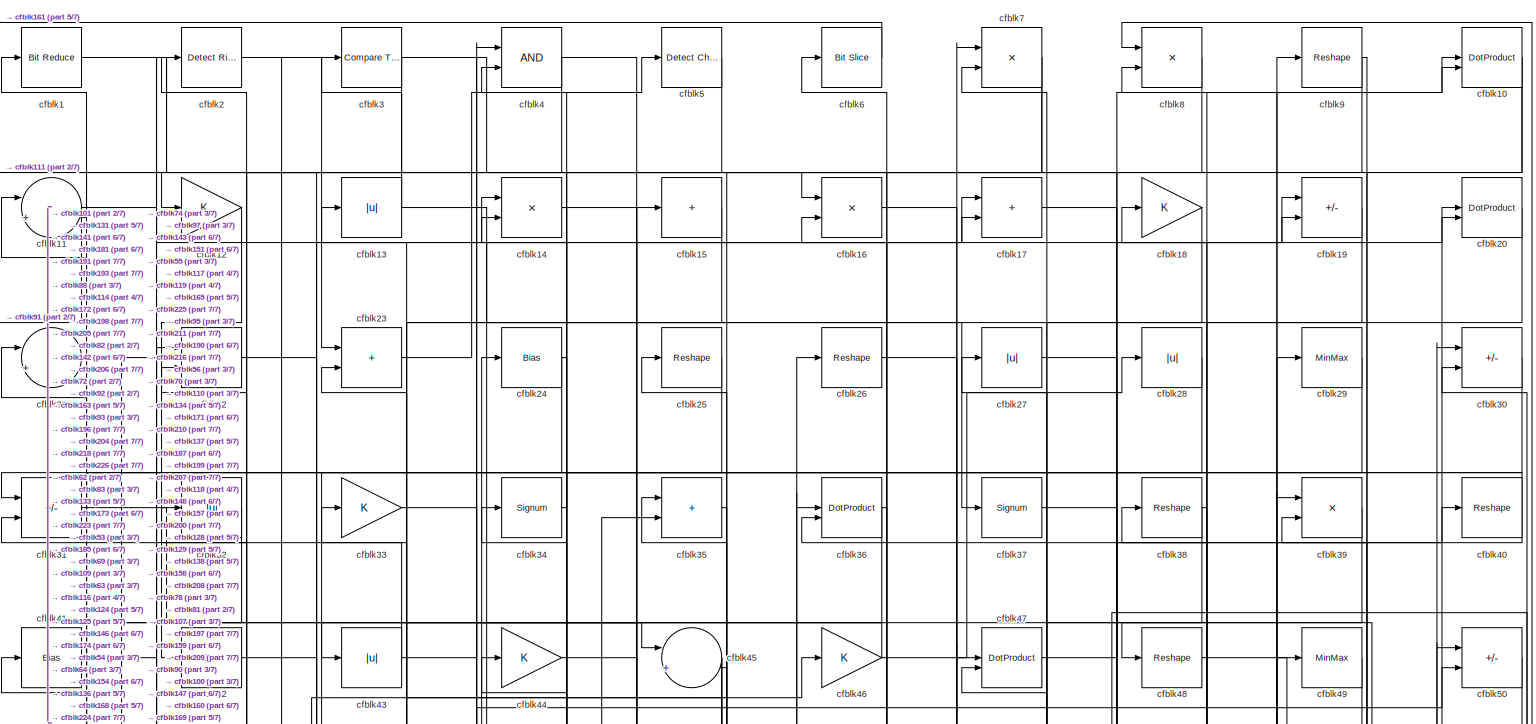
[diagram: root canvas - part 1/7, full width, top band]
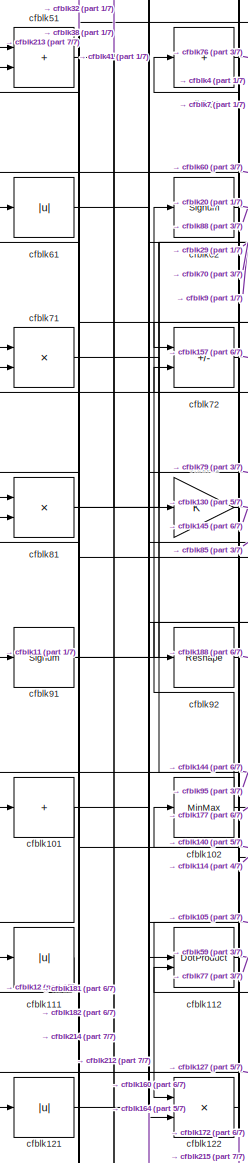
[diagram: root canvas - part 2/7, middle left region]
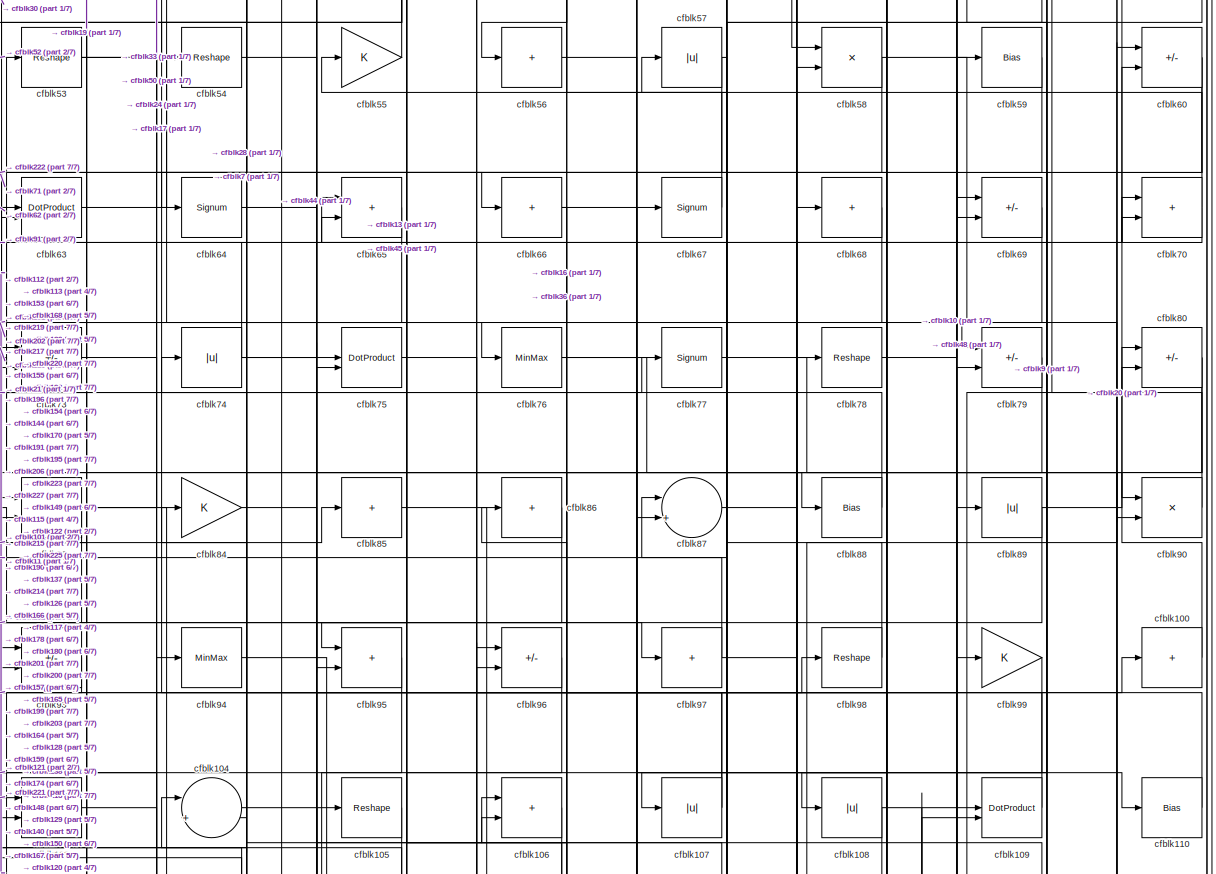
[diagram: root canvas - part 3/7, full width, middle band]
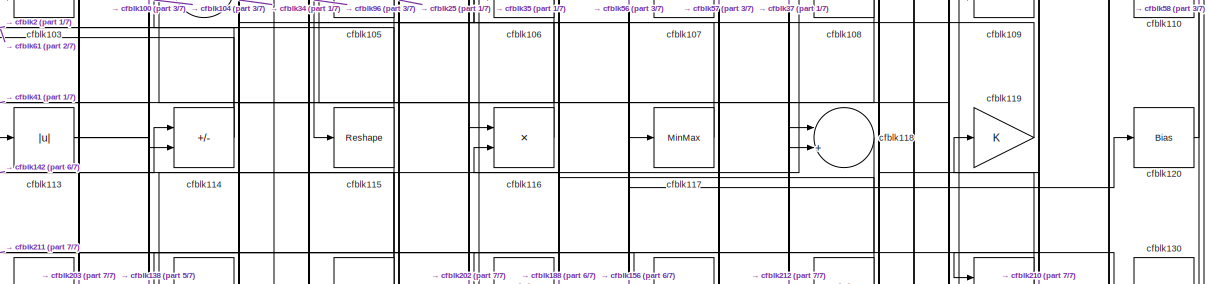
[diagram: root canvas - part 4/7, full width, middle band]
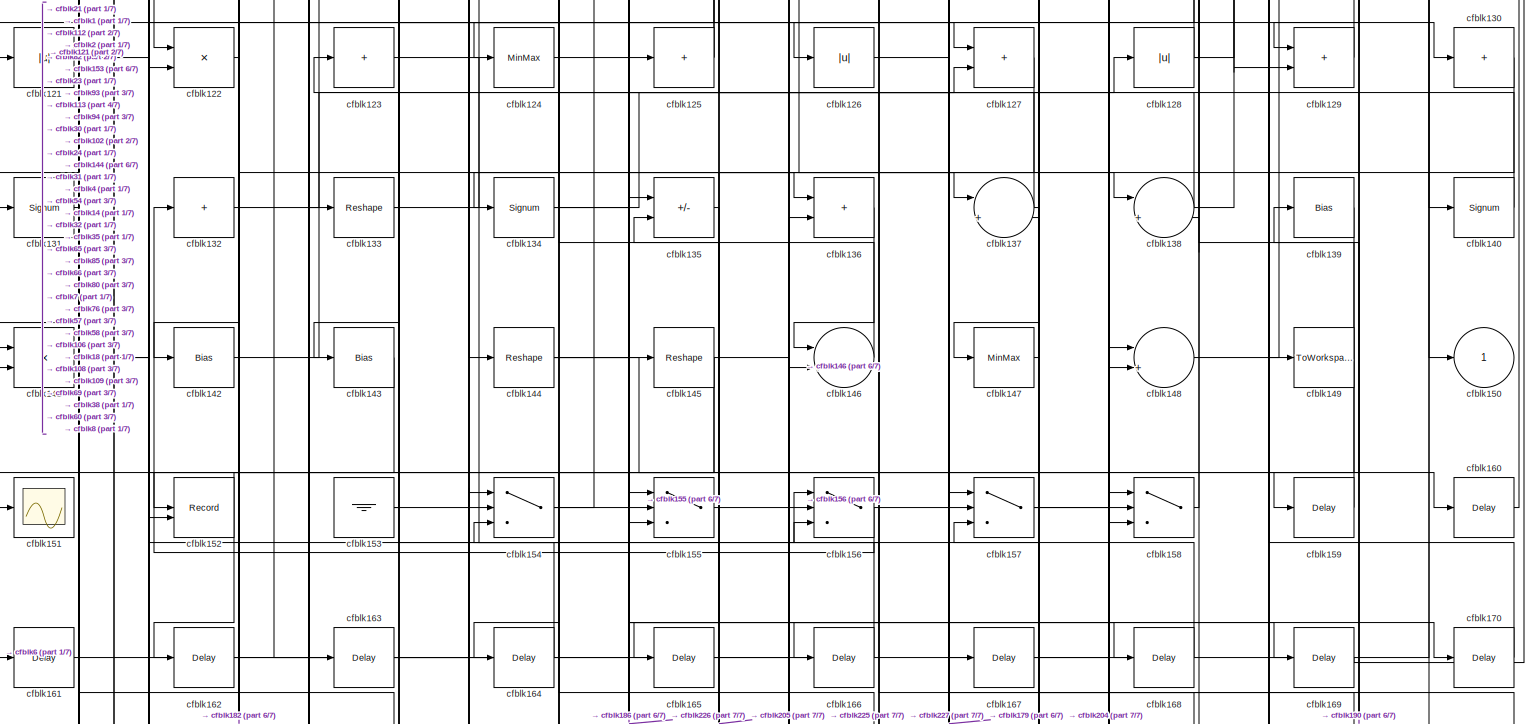
[diagram: root canvas - part 5/7, full width, middle band]
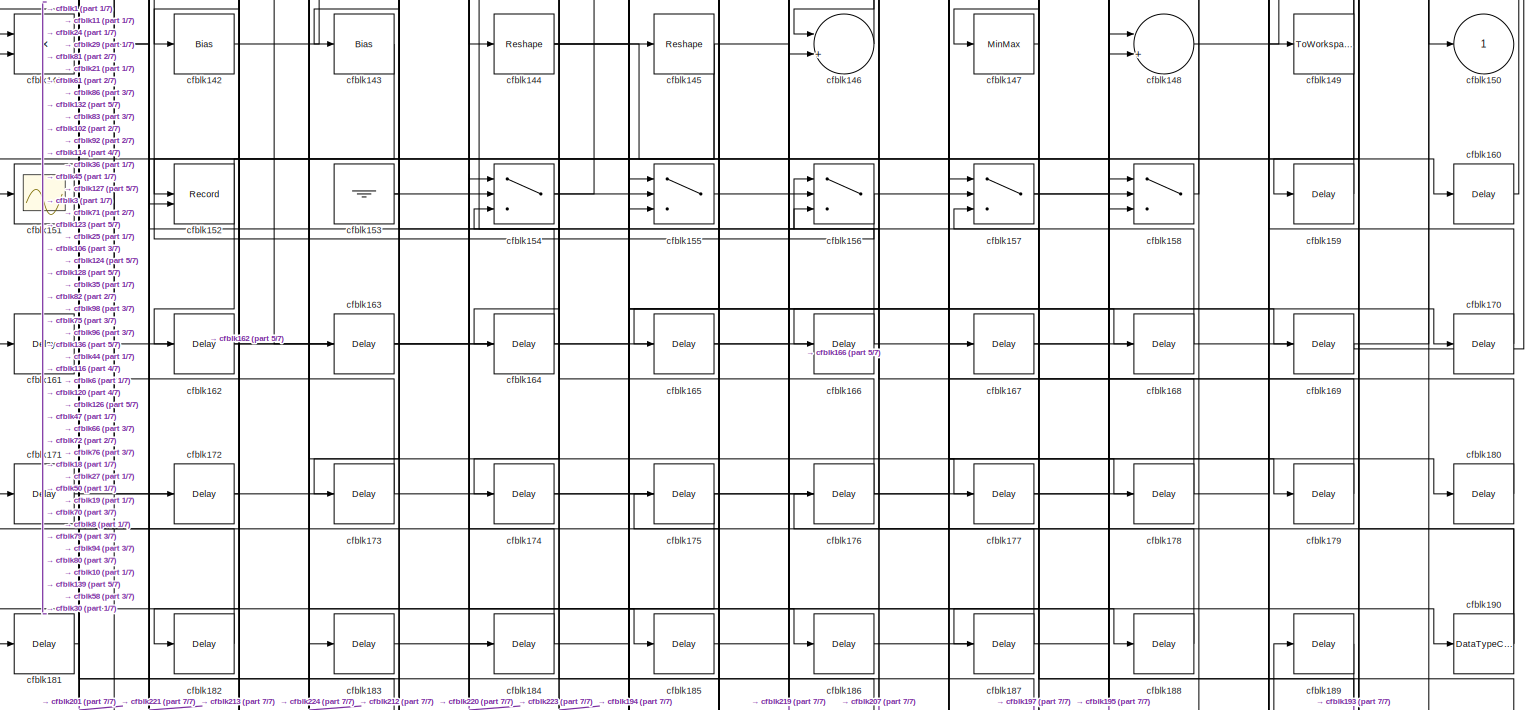
[diagram: root canvas - part 6/7, full width, bottom band]
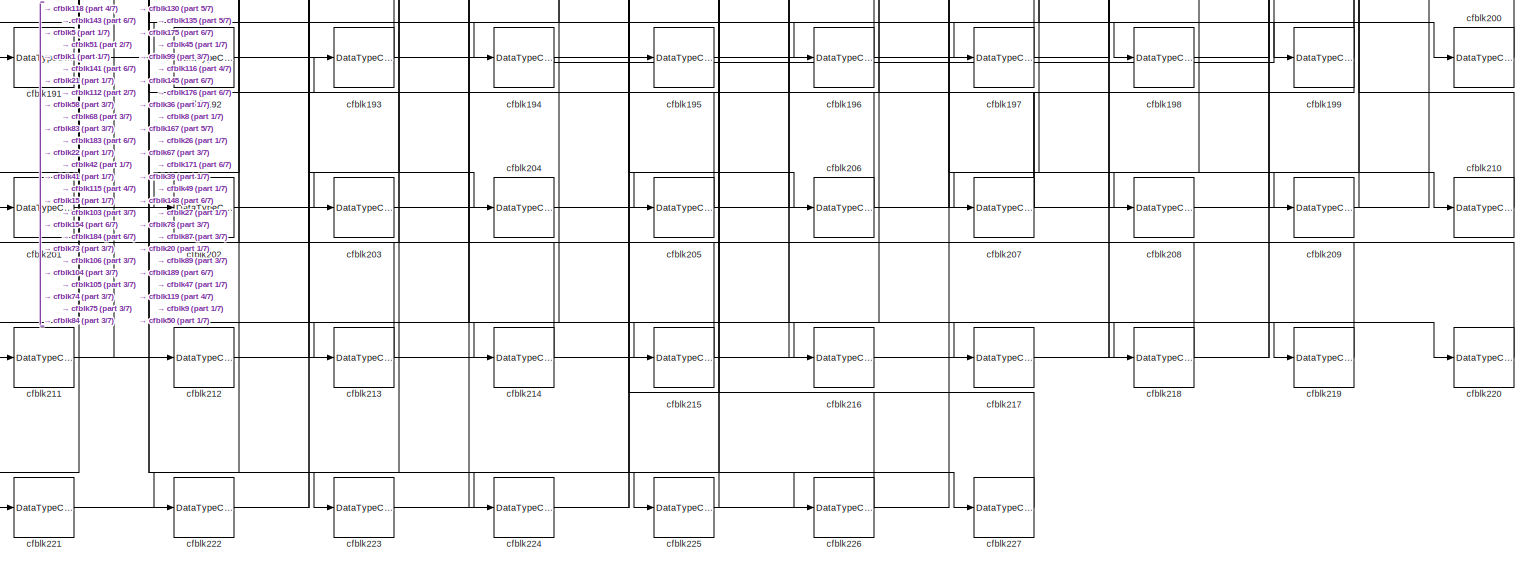
[diagram: root canvas - part 7/7, full width, bottom band]
MODEL slx_b7449c2b25a9
KIND model
CONFIG AbsTol = auto
CONFIG EnableMultiTasking = off
CONFIG FixedStep = auto
CONFIG MaxStep = auto
CONFIG MinStep = auto
CONFIG RelTol = 1e-3
CONFIG SampleTimeConstraint = Unconstrained
CONFIG SolverName = VariableStepAuto
CONFIG StartTime = 0.0
CONFIG StopTime = 10.0
BLOCK [Reference] cfblk1  REF=hdlsllib/Logic and Bit
Operations/Bit Reduce
  SourceBlock = hdlsllib/Logic and Bit\nOperations/Bit Reduce
  SourceType = Bit Reduce
BLOCK [DotProduct] cfblk10
  OutDataTypeStr = Inherit: Inherit via internal rule
BLOCK [Sum] cfblk100
  IconShape = rectangular
  Inputs = +
BLOCK [Sum] cfblk101
  IconShape = rectangular
  Inputs = +
BLOCK [MinMax] cfblk102
BLOCK [Sum] cfblk103
  IconShape = rectangular
BLOCK [Sum] cfblk104
  Inputs = |++
BLOCK [Reshape] cfblk105
BLOCK [Sum] cfblk106
  IconShape = rectangular
BLOCK [Abs] cfblk107
  SaturateOnIntegerOverflow = off
BLOCK [Abs] cfblk108
  SaturateOnIntegerOverflow = off
BLOCK [DotProduct] cfblk109
  OutDataTypeStr = Inherit: Inherit via internal rule
BLOCK [Sum] cfblk11
  Inputs = |++
BLOCK [Bias] cfblk110
  Bias = 0.0
  SaturateOnIntegerOverflow = off
BLOCK [Abs] cfblk111
  SaturateOnIntegerOverflow = off
BLOCK [DotProduct] cfblk112
  OutDataTypeStr = Inherit: Inherit via internal rule
BLOCK [Abs] cfblk113
  SaturateOnIntegerOverflow = off
BLOCK [Sum] cfblk114
  IconShape = rectangular
  Inputs = +-
BLOCK [Reshape] cfblk115
BLOCK [Product] cfblk116
  Inputs = */
  RndMeth = Zero
  SaturateOnIntegerOverflow = on
BLOCK [MinMax] cfblk117
BLOCK [Sum] cfblk118
  Inputs = |++
BLOCK [Gain] cfblk119
BLOCK [Gain] cfblk12
BLOCK [Bias] cfblk120
  Bias = 0.0
  SaturateOnIntegerOverflow = off
BLOCK [Abs] cfblk121
  SaturateOnIntegerOverflow = off
BLOCK [Product] cfblk122
  Inputs = */
  RndMeth = Zero
  SaturateOnIntegerOverflow = on
BLOCK [Sum] cfblk123
  IconShape = rectangular
  Inputs = +
BLOCK [MinMax] cfblk124
BLOCK [Sum] cfblk125
  IconShape = rectangular
  Inputs = +
BLOCK [Abs] cfblk126
  SaturateOnIntegerOverflow = off
BLOCK [Sum] cfblk127
  IconShape = rectangular
BLOCK [Abs] cfblk128
  SaturateOnIntegerOverflow = off
BLOCK [Sum] cfblk129
  IconShape = rectangular
BLOCK [Abs] cfblk13
  SaturateOnIntegerOverflow = off
BLOCK [Sum] cfblk130
  IconShape = rectangular
  Inputs = +
BLOCK [Signum] cfblk131
BLOCK [Sum] cfblk132
  IconShape = rectangular
  Inputs = +
BLOCK [Reshape] cfblk133
BLOCK [Signum] cfblk134
BLOCK [Sum] cfblk135
  IconShape = rectangular
  Inputs = +-
BLOCK [Sum] cfblk136
  IconShape = rectangular
BLOCK [Sum] cfblk137
  Inputs = |++
BLOCK [Sum] cfblk138
  Inputs = |++
BLOCK [Bias] cfblk139
  Bias = 0.0
  SaturateOnIntegerOverflow = off
BLOCK [Product] cfblk14
  Inputs = */
  RndMeth = Zero
  SaturateOnIntegerOverflow = on
BLOCK [Signum] cfblk140
BLOCK [Product] cfblk141
  Inputs = */
  RndMeth = Zero
  SaturateOnIntegerOverflow = on
BLOCK [Bias] cfblk142
  Bias = 0.0
  SaturateOnIntegerOverflow = off
BLOCK [Bias] cfblk143
  Bias = 0.0
  SaturateOnIntegerOverflow = off
BLOCK [Reshape] cfblk144
BLOCK [Reshape] cfblk145
BLOCK [Sum] cfblk146
  Inputs = |++
BLOCK [MinMax] cfblk147
BLOCK [Sum] cfblk148
  Inputs = |++
BLOCK [ToWorkspace] cfblk149
  MaxDataPoints = inf
  SampleTime = -1
  SaveFormat = Timeseries
  VariableName = simout
BLOCK [Sum] cfblk15
  IconShape = rectangular
  Inputs = +
BLOCK [Outport] cfblk150
  VectorParamsAs1DForOutWhenUnconnected = off
BLOCK [Scope] cfblk151
  Floating = off
  NumInputPorts = 1
  ScopeSpecificationString = Simulink.scopes.TimeScopeBlockCfg('CurrentConfiguration', extmgr.ConfigurationSet(extmgr.Configuration('Core','General UI',true),extmgr.Configuration('Core','Source UI',true),extmgr.Configuration('Sources','WiredSimulink',true,'DataLoggingVariableName','ScopeData2','DataLoggingSaveFormat','Array','DataLoggingLimitDataPoints',true,'DataLoggingDecimation','1'),extmgr.Configuration('Visuals','Time Do...<+868ch>
BLOCK [Record] cfblk152
  CompatibilityTag = XY
  FileSettingsInternal = {"entries":[{"content":{"excelSettings":{"content":{},"type":"Streamout.ExcelSettings"}},"type":"Streamout.FileSettingStorage","uuid":""}],"packageUris":["http:\/\/schema.mathworks.com\/mf0\/streamout_blocks\/R2020a"],"version":"1.0"}
  Layout = [1 1]
  SignalsInternal = {"entries":[{"content":{"signals":[{"content":{"blockPath":[],"dimensions":[1],"domain":"","lineColor":"#a2142f","plots":[1],"port":1,"signalID":3829,"signalName":"XY Graph:1"},"type":"RecordBlkView.Signal","uuid":""},{"content":{"blockPath":[],"dimensions":[1],"domain":"","lineColor":"#139fff","plots":[1],"port":2,"signalID":3832,"signalName":"XY Graph:2"},"type":"RecordBlkView.Signal","uuid":""}...<+146ch>
  VisualizationBindings = {"xyplotplugin":{"info":[{"series":[{"bindingParametersList":[{"parameter":"X-Axis","signalID":3829,"signalName":"XY Graph:1"},{"parameter":"Y-Axis","signalID":3832,"signalName":"XY Graph:2"}],"seriesID":32770}],"subplotID":1}]}}
  st = -1
BLOCK [Ground] cfblk153
BLOCK [Switch] cfblk154
  InputSameDT = off
  SaturateOnIntegerOverflow = off
BLOCK [Switch] cfblk155
  InputSameDT = off
  SaturateOnIntegerOverflow = off
BLOCK [Switch] cfblk156
  InputSameDT = off
  SaturateOnIntegerOverflow = off
BLOCK [Switch] cfblk157
  InputSameDT = off
  SaturateOnIntegerOverflow = off
BLOCK [Switch] cfblk158
  InputSameDT = off
  SaturateOnIntegerOverflow = off
BLOCK [Delay] cfblk159
  InputPortMap = u0
  SampleTime = 1
BLOCK [Product] cfblk16
  Inputs = */
  RndMeth = Zero
  SaturateOnIntegerOverflow = on
BLOCK [Delay] cfblk160
  InputPortMap = u0
  SampleTime = 1
BLOCK [Delay] cfblk161
  InputPortMap = u0
  SampleTime = 1
BLOCK [Delay] cfblk162
  InputPortMap = u0
  SampleTime = 1
BLOCK [Delay] cfblk163
  InputPortMap = u0
  SampleTime = 1
BLOCK [Delay] cfblk164
  InputPortMap = u0
  SampleTime = 1
BLOCK [Delay] cfblk165
  InputPortMap = u0
  SampleTime = 1
BLOCK [Delay] cfblk166
  InputPortMap = u0
  SampleTime = 1
BLOCK [Delay] cfblk167
  InputPortMap = u0
  SampleTime = 1
BLOCK [Delay] cfblk168
  InputPortMap = u0
  SampleTime = 1
BLOCK [Delay] cfblk169
  InputPortMap = u0
  SampleTime = 1
BLOCK [Sum] cfblk17
  IconShape = rectangular
BLOCK [Delay] cfblk170
  InputPortMap = u0
  SampleTime = 1
BLOCK [Delay] cfblk171
  InputPortMap = u0
  SampleTime = 1
BLOCK [Delay] cfblk172
  InputPortMap = u0
  SampleTime = 1
BLOCK [Delay] cfblk173
  InputPortMap = u0
  SampleTime = 1
BLOCK [Delay] cfblk174
  InputPortMap = u0
  SampleTime = 1
BLOCK [Delay] cfblk175
  InputPortMap = u0
  SampleTime = 1
BLOCK [Delay] cfblk176
  InputPortMap = u0
  SampleTime = 1
BLOCK [Delay] cfblk177
  InputPortMap = u0
  SampleTime = 1
BLOCK [Delay] cfblk178
  InputPortMap = u0
  SampleTime = 1
BLOCK [Delay] cfblk179
  InputPortMap = u0
  SampleTime = 1
BLOCK [Gain] cfblk18
BLOCK [Delay] cfblk180
  InputPortMap = u0
  SampleTime = 1
BLOCK [Delay] cfblk181
  InputPortMap = u0
  SampleTime = 1
BLOCK [Delay] cfblk182
  InputPortMap = u0
  SampleTime = 1
BLOCK [Delay] cfblk183
  InputPortMap = u0
  SampleTime = 1
BLOCK [Delay] cfblk184
  InputPortMap = u0
  SampleTime = 1
BLOCK [Delay] cfblk185
  InputPortMap = u0
  SampleTime = 1
BLOCK [Delay] cfblk186
  InputPortMap = u0
  SampleTime = 1
BLOCK [Delay] cfblk187
  InputPortMap = u0
  SampleTime = 1
BLOCK [Delay] cfblk188
  InputPortMap = u0
  SampleTime = 1
BLOCK [Delay] cfblk189
  InputPortMap = u0
  SampleTime = 1
BLOCK [Sum] cfblk19
  IconShape = rectangular
  Inputs = +-
BLOCK [DataTypeConversion] cfblk190
  RndMeth = Floor
  SaturateOnIntegerOverflow = off
BLOCK [DataTypeConversion] cfblk191
  OutDataTypeStr = uint8
  RndMeth = Floor
  SaturateOnIntegerOverflow = off
BLOCK [DataTypeConversion] cfblk192
  OutDataTypeStr = uint8
  RndMeth = Floor
  SaturateOnIntegerOverflow = off
BLOCK [DataTypeConversion] cfblk193
  OutDataTypeStr = uint8
  RndMeth = Floor
  SaturateOnIntegerOverflow = off
BLOCK [DataTypeConversion] cfblk194
  OutDataTypeStr = uint8
  RndMeth = Floor
  SaturateOnIntegerOverflow = off
BLOCK [DataTypeConversion] cfblk195
  OutDataTypeStr = uint8
  RndMeth = Floor
  SaturateOnIntegerOverflow = off
BLOCK [DataTypeConversion] cfblk196
  OutDataTypeStr = uint8
  RndMeth = Floor
  SaturateOnIntegerOverflow = off
BLOCK [DataTypeConversion] cfblk197
  OutDataTypeStr = uint8
  RndMeth = Floor
  SaturateOnIntegerOverflow = off
BLOCK [DataTypeConversion] cfblk198
  OutDataTypeStr = uint8
  RndMeth = Floor
  SaturateOnIntegerOverflow = off
BLOCK [DataTypeConversion] cfblk199
  OutDataTypeStr = uint8
  RndMeth = Floor
  SaturateOnIntegerOverflow = off
BLOCK [Reference] cfblk2  REF=hdlsllib/Logic and Bit
Operations/Detect Rise
Positive
  SourceBlock = hdlsllib/Logic and Bit\nOperations/Detect Rise\nPositive
  SourceType = Detect Rise Positive
BLOCK [DotProduct] cfblk20
  OutDataTypeStr = Inherit: Inherit via internal rule
BLOCK [DataTypeConversion] cfblk200
  OutDataTypeStr = uint8
  RndMeth = Floor
  SaturateOnIntegerOverflow = off
BLOCK [DataTypeConversion] cfblk201
  OutDataTypeStr = uint8
  RndMeth = Floor
  SaturateOnIntegerOverflow = off
BLOCK [DataTypeConversion] cfblk202
  OutDataTypeStr = uint8
  RndMeth = Floor
  SaturateOnIntegerOverflow = off
BLOCK [DataTypeConversion] cfblk203
  OutDataTypeStr = uint8
  RndMeth = Floor
  SaturateOnIntegerOverflow = off
BLOCK [DataTypeConversion] cfblk204
  RndMeth = Floor
  SaturateOnIntegerOverflow = off
BLOCK [DataTypeConversion] cfblk205
  OutDataTypeStr = uint8
  RndMeth = Floor
  SaturateOnIntegerOverflow = off
BLOCK [DataTypeConversion] cfblk206
  OutDataTypeStr = uint8
  RndMeth = Floor
  SaturateOnIntegerOverflow = off
BLOCK [DataTypeConversion] cfblk207
  RndMeth = Floor
  SaturateOnIntegerOverflow = off
BLOCK [DataTypeConversion] cfblk208
  OutDataTypeStr = uint8
  RndMeth = Floor
  SaturateOnIntegerOverflow = off
BLOCK [DataTypeConversion] cfblk209
  OutDataTypeStr = uint8
  RndMeth = Floor
  SaturateOnIntegerOverflow = off
BLOCK [Sum] cfblk21
  Inputs = |++
BLOCK [DataTypeConversion] cfblk210
  OutDataTypeStr = uint8
  RndMeth = Floor
  SaturateOnIntegerOverflow = off
BLOCK [DataTypeConversion] cfblk211
  OutDataTypeStr = uint8
  RndMeth = Floor
  SaturateOnIntegerOverflow = off
BLOCK [DataTypeConversion] cfblk212
  RndMeth = Floor
  SaturateOnIntegerOverflow = off
BLOCK [DataTypeConversion] cfblk213
  OutDataTypeStr = uint8
  RndMeth = Floor
  SaturateOnIntegerOverflow = off
BLOCK [DataTypeConversion] cfblk214
  OutDataTypeStr = uint8
  RndMeth = Floor
  SaturateOnIntegerOverflow = off
BLOCK [DataTypeConversion] cfblk215
  OutDataTypeStr = uint8
  RndMeth = Floor
  SaturateOnIntegerOverflow = off
BLOCK [DataTypeConversion] cfblk216
  OutDataTypeStr = uint8
  RndMeth = Floor
  SaturateOnIntegerOverflow = off
BLOCK [DataTypeConversion] cfblk217
  RndMeth = Floor
  SaturateOnIntegerOverflow = off
BLOCK [DataTypeConversion] cfblk218
  OutDataTypeStr = uint8
  RndMeth = Floor
  SaturateOnIntegerOverflow = off
BLOCK [DataTypeConversion] cfblk219
  OutDataTypeStr = uint8
  RndMeth = Floor
  SaturateOnIntegerOverflow = off
BLOCK [Product] cfblk22
  Inputs = */
  RndMeth = Zero
  SaturateOnIntegerOverflow = on
BLOCK [DataTypeConversion] cfblk220
  OutDataTypeStr = uint8
  RndMeth = Floor
  SaturateOnIntegerOverflow = off
BLOCK [DataTypeConversion] cfblk221
  OutDataTypeStr = uint8
  RndMeth = Floor
  SaturateOnIntegerOverflow = off
BLOCK [DataTypeConversion] cfblk222
  OutDataTypeStr = uint8
  RndMeth = Floor
  SaturateOnIntegerOverflow = off
BLOCK [DataTypeConversion] cfblk223
  RndMeth = Floor
  SaturateOnIntegerOverflow = off
BLOCK [DataTypeConversion] cfblk224
  OutDataTypeStr = uint8
  RndMeth = Floor
  SaturateOnIntegerOverflow = off
BLOCK [DataTypeConversion] cfblk225
  RndMeth = Floor
  SaturateOnIntegerOverflow = off
BLOCK [DataTypeConversion] cfblk226
  OutDataTypeStr = uint8
  RndMeth = Floor
  SaturateOnIntegerOverflow = off
BLOCK [DataTypeConversion] cfblk227
  OutDataTypeStr = uint8
  RndMeth = Floor
  SaturateOnIntegerOverflow = off
BLOCK [Sum] cfblk23
  IconShape = rectangular
BLOCK [Bias] cfblk24
  Bias = 0.0
  SaturateOnIntegerOverflow = off
BLOCK [Reshape] cfblk25
BLOCK [Reshape] cfblk26
BLOCK [Abs] cfblk27
  SaturateOnIntegerOverflow = off
BLOCK [Abs] cfblk28
  SaturateOnIntegerOverflow = off
BLOCK [MinMax] cfblk29
BLOCK [Reference] cfblk3  REF=hdlsllib/Logic and Bit
Operations/Compare
To Constant
  SourceBlock = hdlsllib/Logic and Bit\nOperations/Compare\nTo Constant
  SourceType = Compare To Constant
BLOCK [Sum] cfblk30
  IconShape = rectangular
  Inputs = +-
BLOCK [Sum] cfblk31
  IconShape = rectangular
  Inputs = +-
BLOCK [Abs] cfblk32
  SaturateOnIntegerOverflow = off
BLOCK [Gain] cfblk33
BLOCK [Signum] cfblk34
BLOCK [Sum] cfblk35
  IconShape = rectangular
BLOCK [DotProduct] cfblk36
  OutDataTypeStr = Inherit: Inherit via internal rule
BLOCK [Signum] cfblk37
BLOCK [Reshape] cfblk38
BLOCK [Product] cfblk39
  Inputs = */
  RndMeth = Zero
  SaturateOnIntegerOverflow = on
BLOCK [Logic] cfblk4
  AllPortsSameDT = off
  OutDataTypeStr = boolean
BLOCK [Reshape] cfblk40
BLOCK [Bias] cfblk41
  Bias = 0.0
  SaturateOnIntegerOverflow = off
BLOCK [Bias] cfblk42
  Bias = 0.0
  SaturateOnIntegerOverflow = off
BLOCK [Abs] cfblk43
  SaturateOnIntegerOverflow = off
BLOCK [Gain] cfblk44
BLOCK [Sum] cfblk45
  Inputs = |++
BLOCK [Gain] cfblk46
BLOCK [DotProduct] cfblk47
  OutDataTypeStr = Inherit: Inherit via internal rule
BLOCK [Reshape] cfblk48
BLOCK [MinMax] cfblk49
BLOCK [Reference] cfblk5  REF=simulink/Logic and Bit
Operations/Detect
Change
  LibrarySourceBlock = hdlsllib/Logic and Bit\nOperations/Detect\nChange
  SourceBlock = simulink/Logic and Bit\nOperations/Detect\nChange
  SourceType = Detect Change
BLOCK [Sum] cfblk50
  IconShape = rectangular
  Inputs = +-
BLOCK [Sum] cfblk51
  IconShape = rectangular
BLOCK [Sum] cfblk52
  IconShape = rectangular
  Inputs = +
BLOCK [Reshape] cfblk53
BLOCK [Reshape] cfblk54
BLOCK [Gain] cfblk55
BLOCK [Sum] cfblk56
  IconShape = rectangular
  Inputs = +
BLOCK [Abs] cfblk57
  SaturateOnIntegerOverflow = off
BLOCK [Product] cfblk58
  Inputs = */
  RndMeth = Zero
  SaturateOnIntegerOverflow = on
BLOCK [Bias] cfblk59
  Bias = 0.0
  SaturateOnIntegerOverflow = off
BLOCK [Reference] cfblk6  REF=hdlsllib/Logic and Bit
Operations/Bit Slice
  SourceBlock = hdlsllib/Logic and Bit\nOperations/Bit Slice
  SourceType = Bit Slice
BLOCK [Sum] cfblk60
  IconShape = rectangular
  Inputs = +-
BLOCK [Abs] cfblk61
  SaturateOnIntegerOverflow = off
BLOCK [Signum] cfblk62
BLOCK [DotProduct] cfblk63
  OutDataTypeStr = Inherit: Inherit via internal rule
BLOCK [Signum] cfblk64
BLOCK [Sum] cfblk65
  IconShape = rectangular
BLOCK [Sum] cfblk66
  IconShape = rectangular
  Inputs = +
BLOCK [Signum] cfblk67
BLOCK [Sum] cfblk68
  IconShape = rectangular
  Inputs = +
BLOCK [Sum] cfblk69
  IconShape = rectangular
  Inputs = +-
BLOCK [Product] cfblk7
  Inputs = */
  RndMeth = Zero
  SaturateOnIntegerOverflow = on
BLOCK [Sum] cfblk70
  IconShape = rectangular
BLOCK [Product] cfblk71
  Inputs = */
  RndMeth = Zero
  SaturateOnIntegerOverflow = on
BLOCK [Sum] cfblk72
  IconShape = rectangular
  Inputs = +-
BLOCK [Sum] cfblk73
  IconShape = rectangular
  Inputs = +-
BLOCK [Abs] cfblk74
  SaturateOnIntegerOverflow = off
BLOCK [DotProduct] cfblk75
  OutDataTypeStr = Inherit: Inherit via internal rule
BLOCK [MinMax] cfblk76
BLOCK [Signum] cfblk77
BLOCK [Reshape] cfblk78
BLOCK [Sum] cfblk79
  IconShape = rectangular
  Inputs = +-
BLOCK [Product] cfblk8
  Inputs = */
  RndMeth = Zero
  SaturateOnIntegerOverflow = on
BLOCK [Sum] cfblk80
  IconShape = rectangular
  Inputs = +-
BLOCK [Product] cfblk81
  Inputs = */
  RndMeth = Zero
  SaturateOnIntegerOverflow = on
BLOCK [Gain] cfblk82
BLOCK [Product] cfblk83
  Inputs = */
  RndMeth = Zero
  SaturateOnIntegerOverflow = on
BLOCK [Gain] cfblk84
BLOCK [Sum] cfblk85
  IconShape = rectangular
  Inputs = +
BLOCK [Sum] cfblk86
  IconShape = rectangular
  Inputs = +
BLOCK [Sum] cfblk87
  Inputs = |++
BLOCK [Bias] cfblk88
  Bias = 0.0
  SaturateOnIntegerOverflow = off
BLOCK [Abs] cfblk89
  SaturateOnIntegerOverflow = off
BLOCK [Reshape] cfblk9
BLOCK [Product] cfblk90
  Inputs = */
  RndMeth = Zero
  SaturateOnIntegerOverflow = on
BLOCK [Signum] cfblk91
BLOCK [Reshape] cfblk92
BLOCK [Sum] cfblk93
  IconShape = rectangular
  Inputs = +-
BLOCK [MinMax] cfblk94
BLOCK [Sum] cfblk95
  IconShape = rectangular
BLOCK [Sum] cfblk96
  IconShape = rectangular
  Inputs = +-
BLOCK [Sum] cfblk97
  IconShape = rectangular
  Inputs = +
BLOCK [Reshape] cfblk98
BLOCK [Gain] cfblk99
LINE cfblk100:1 -> cfblk20:1
NET cfblk101:1 -> cfblk111:1, cfblk85:1
NET cfblk102:1 -> cfblk177:1, cfblk62:1
LINE cfblk103:1 -> cfblk220:1
LINE cfblk104:1 -> cfblk206:1
LINE cfblk105:1 -> cfblk122:1
LINE cfblk106:1 -> cfblk214:1
NET cfblk107:1 -> cfblk33:1, cfblk74:1
NET cfblk108:1 -> cfblk129:2, cfblk164:1
LINE cfblk109:1 -> cfblk24:1
NET cfblk10:1 -> cfblk142:1, cfblk159:1
LINE cfblk110:1 -> cfblk86:1
LINE cfblk111:1 -> cfblk12:1
NET cfblk112:1 -> cfblk59:1, cfblk77:1
NET cfblk113:1 -> cfblk100:1, cfblk138:1
NET cfblk114:1 -> cfblk2:1, cfblk61:1
NET cfblk115:1 -> cfblk104:1, cfblk203:1
LINE cfblk116:1 -> cfblk34:1
LINE cfblk117:1 -> cfblk25:1
LINE cfblk118:1 -> cfblk211:1
LINE cfblk119:1 -> cfblk35:1
NET cfblk11:1 -> cfblk14:2, cfblk91:1
LINE cfblk120:1 -> cfblk58:1
LINE cfblk121:1 -> cfblk127:1
LINE cfblk122:1 -> cfblk52:1
LINE cfblk123:1 -> cfblk156:1
LINE cfblk124:1 -> cfblk186:1
NET cfblk125:1 -> cfblk14:1, cfblk32:1
LINE cfblk126:1 -> cfblk179:1
LINE cfblk127:1 -> cfblk182:1
NET cfblk128:1 -> cfblk106:1, cfblk109:1, cfblk18:1
LINE cfblk129:1 -> cfblk38:1
LINE cfblk12:1 -> cfblk42:1
LINE cfblk130:1 -> cfblk205:1
LINE cfblk131:1 -> cfblk21:2
LINE cfblk132:1 -> cfblk94:1
NET cfblk133:1 -> cfblk23:2, cfblk30:1
NET cfblk134:1 -> cfblk169:1, cfblk7:1
LINE cfblk135:1 -> cfblk225:1
LINE cfblk136:1 -> cfblk146:1
NET cfblk137:1 -> cfblk65:1, cfblk7:2
NET cfblk138:1 -> cfblk109:2, cfblk123:1
LINE cfblk139:1 -> cfblk162:1
NET cfblk13:1 -> cfblk37:1, cfblk3:1
LINE cfblk140:1 -> cfblk102:1
NET cfblk141:1 -> cfblk213:1, cfblk224:1
LINE cfblk142:1 -> cfblk114:1
LINE cfblk143:1 -> cfblk201:1
NET cfblk144:1 -> cfblk106:2, cfblk128:1, cfblk158:2
NET cfblk145:1 -> cfblk152:1, cfblk194:1, cfblk219:1
LINE cfblk146:1 -> cfblk44:1
LINE cfblk147:1 -> cfblk27:1
LINE cfblk148:1 -> cfblk80:1
NET cfblk14:1 -> cfblk134:1, cfblk168:1
NET cfblk153:1 -> cfblk127:2, cfblk83:2
NET cfblk154:1 -> cfblk35:2, cfblk98:1
LINE cfblk155:1 -> cfblk96:2
NET cfblk156:1 -> cfblk120:1, cfblk132:1
NET cfblk157:1 -> cfblk19:1, cfblk70:1
LINE cfblk158:1 -> cfblk8:2
LINE cfblk159:1 -> cfblk96:1
LINE cfblk15:1 -> cfblk223:1
LINE cfblk160:1 -> cfblk30:2
LINE cfblk161:1 -> cfblk4:1
LINE cfblk162:1 -> cfblk155:2
LINE cfblk163:1 -> cfblk136:2
LINE cfblk164:1 -> cfblk112:1
LINE cfblk165:1 -> cfblk58:2
LINE cfblk166:1 -> cfblk156:2
LINE cfblk167:1 -> cfblk60:1
LINE cfblk168:1 -> cfblk93:2
LINE cfblk169:1 -> cfblk8:1
LINE cfblk16:1 -> cfblk110:1
LINE cfblk170:1 -> cfblk69:1
LINE cfblk171:1 -> cfblk47:1
LINE cfblk172:1 -> cfblk72:2
LINE cfblk173:1 -> cfblk11:1
LINE cfblk174:1 -> cfblk79:2
LINE cfblk175:1 -> cfblk221:1
LINE cfblk176:1 -> cfblk154:3
LINE cfblk177:1 -> cfblk158:3
LINE cfblk178:1 -> cfblk156:3
LINE cfblk179:1 -> cfblk157:1
LINE cfblk17:1 -> cfblk19:2
LINE cfblk180:1 -> cfblk157:3
LINE cfblk181:1 -> cfblk71:2
LINE cfblk182:1 -> cfblk81:2
LINE cfblk183:1 -> cfblk155:3
LINE cfblk184:1 -> cfblk154:1
LINE cfblk185:1 -> cfblk146:2
LINE cfblk186:1 -> cfblk158:1
LINE cfblk187:1 -> cfblk1:1
LINE cfblk188:1 -> cfblk116:2
LINE cfblk189:1 -> cfblk193:1
LINE cfblk18:1 -> cfblk187:1
NET cfblk190:1 -> cfblk139:1, cfblk6:1
LINE cfblk191:1 -> cfblk75:1
LINE cfblk192:1 -> cfblk75:2
LINE cfblk193:1 -> cfblk41:1
LINE cfblk194:1 -> cfblk189:1
LINE cfblk195:1 -> cfblk148:1
LINE cfblk196:1 -> cfblk84:1
LINE cfblk197:1 -> cfblk171:1
LINE cfblk198:1 -> cfblk49:1
LINE cfblk199:1 -> cfblk47:2
LINE cfblk19:1 -> cfblk53:1
NET cfblk1:1 -> cfblk133:1, cfblk16:1, cfblk196:1, cfblk226:1
LINE cfblk200:1 -> cfblk87:1
LINE cfblk201:1 -> cfblk87:2
LINE cfblk202:1 -> cfblk116:1
LINE cfblk203:1 -> cfblk68:1
NET cfblk204:1 -> cfblk167:1, cfblk50:1
LINE cfblk205:1 -> cfblk22:1
LINE cfblk206:1 -> cfblk22:2
NET cfblk207:1 -> cfblk175:1, cfblk176:1, cfblk36:1
LINE cfblk208:1 -> cfblk39:1
LINE cfblk209:1 -> cfblk39:2
LINE cfblk20:1 -> cfblk208:1
LINE cfblk210:1 -> cfblk119:1
LINE cfblk211:1 -> cfblk26:1
NET cfblk212:1 -> cfblk118:2, cfblk183:1
LINE cfblk213:1 -> cfblk51:1
LINE cfblk214:1 -> cfblk51:2
LINE cfblk215:1 -> cfblk112:2
LINE cfblk216:1 -> cfblk99:1
NET cfblk217:1 -> cfblk78:1, cfblk89:1
LINE cfblk218:1 -> cfblk73:1
LINE cfblk219:1 -> cfblk73:2
NET cfblk21:1 -> cfblk172:1, cfblk198:1
LINE cfblk220:1 -> cfblk154:2
LINE cfblk221:1 -> cfblk103:1
LINE cfblk222:1 -> cfblk103:2
NET cfblk223:1 -> cfblk105:1, cfblk184:1
LINE cfblk224:1 -> cfblk15:1
NET cfblk225:1 -> cfblk45:2, cfblk67:1
LINE cfblk226:1 -> cfblk135:1
LINE cfblk227:1 -> cfblk135:2
LINE cfblk22:1 -> cfblk204:1
LINE cfblk23:1 -> cfblk5:1
NET cfblk24:1 -> cfblk124:1, cfblk141:1
LINE cfblk25:1 -> cfblk174:1
LINE cfblk26:1 -> cfblk210:1
LINE cfblk27:1 -> cfblk200:1
LINE cfblk28:1 -> cfblk64:1
LINE cfblk29:1 -> cfblk181:1
NET cfblk2:1 -> cfblk163:1, cfblk23:1
LINE cfblk30:1 -> cfblk83:1
LINE cfblk31:1 -> cfblk125:1
LINE cfblk32:1 -> cfblk81:1
LINE cfblk33:1 -> cfblk69:2
LINE cfblk34:1 -> cfblk4:2
LINE cfblk35:1 -> cfblk165:1
NET cfblk36:1 -> cfblk173:1, cfblk56:1
LINE cfblk37:1 -> cfblk118:1
NET cfblk38:1 -> cfblk101:1, cfblk138:2
LINE cfblk39:1 -> cfblk207:1
NET cfblk3:1 -> cfblk141:2, cfblk148:2, cfblk185:1
NET cfblk40:1 -> cfblk31:1, cfblk36:2
NET cfblk41:1 -> cfblk114:2, cfblk82:1
LINE cfblk42:1 -> cfblk218:1
NET cfblk43:1 -> cfblk31:2, cfblk45:1
LINE cfblk44:1 -> cfblk97:1
NET cfblk45:1 -> cfblk143:1, cfblk151:1, cfblk63:1
NET cfblk46:1 -> cfblk28:1, cfblk43:1
LINE cfblk47:1 -> cfblk40:1
LINE cfblk48:1 -> cfblk107:1
LINE cfblk49:1 -> cfblk197:1
NET cfblk4:1 -> cfblk136:1, cfblk92:1
LINE cfblk50:1 -> cfblk147:1
LINE cfblk51:1 -> cfblk212:1
LINE cfblk52:1 -> cfblk76:1
NET cfblk53:1 -> cfblk66:1, cfblk79:1
LINE cfblk54:1 -> cfblk170:1
LINE cfblk55:1 -> cfblk13:1
LINE cfblk56:1 -> cfblk117:1
NET cfblk57:1 -> cfblk113:1, cfblk137:2
NET cfblk58:1 -> cfblk150:1, cfblk222:1
LINE cfblk59:1 -> cfblk93:1
LINE cfblk5:1 -> cfblk191:1
NET cfblk60:1 -> cfblk129:1, cfblk71:1
LINE cfblk61:1 -> cfblk160:1
NET cfblk62:1 -> cfblk20:2, cfblk88:1
LINE cfblk63:1 -> cfblk17:1
LINE cfblk64:1 -> cfblk90:2
LINE cfblk65:1 -> cfblk131:1
NET cfblk66:1 -> cfblk126:1, cfblk180:1
LINE cfblk67:1 -> cfblk57:1
LINE cfblk68:1 -> cfblk202:1
LINE cfblk69:1 -> cfblk108:1
LINE cfblk6:1 -> cfblk161:1
NET cfblk70:1 -> cfblk16:2, cfblk65:2
LINE cfblk71:1 -> cfblk144:1
LINE cfblk72:1 -> cfblk157:2
LINE cfblk73:1 -> cfblk217:1
NET cfblk74:1 -> cfblk17:2, cfblk227:1, cfblk63:2
LINE cfblk75:1 -> cfblk190:1
NET cfblk76:1 -> cfblk140:1, cfblk178:1
LINE cfblk77:1 -> cfblk90:1
LINE cfblk78:1 -> cfblk10:1
LINE cfblk79:1 -> cfblk122:2
NET cfblk7:1 -> cfblk54:1, cfblk72:1
NET cfblk80:1 -> cfblk104:2, cfblk166:1
NET cfblk81:1 -> cfblk29:1, cfblk9:1
NET cfblk82:1 -> cfblk130:1, cfblk145:1
NET cfblk83:1 -> cfblk155:1, cfblk192:1, cfblk50:2
LINE cfblk84:1 -> cfblk195:1
LINE cfblk85:1 -> cfblk137:1
LINE cfblk86:1 -> cfblk152:2
LINE cfblk87:1 -> cfblk199:1
LINE cfblk88:1 -> cfblk21:1
NET cfblk89:1 -> cfblk80:2, cfblk95:2
LINE cfblk8:1 -> cfblk216:1
LINE cfblk90:1 -> cfblk48:1
NET cfblk91:1 -> cfblk60:2, cfblk70:2
LINE cfblk92:1 -> cfblk188:1
LINE cfblk93:1 -> cfblk46:1
LINE cfblk94:1 -> cfblk149:1
LINE cfblk95:1 -> cfblk121:1
LINE cfblk96:1 -> cfblk115:1
NET cfblk97:1 -> cfblk10:2, cfblk11:2
LINE cfblk98:1 -> cfblk55:1
LINE cfblk99:1 -> cfblk215:1
NET cfblk9:1 -> cfblk209:1, cfblk95:1
note: NET lines group one-source signal fan-out (src -> all destinations, sorted); 1:1 wires keep LINE
